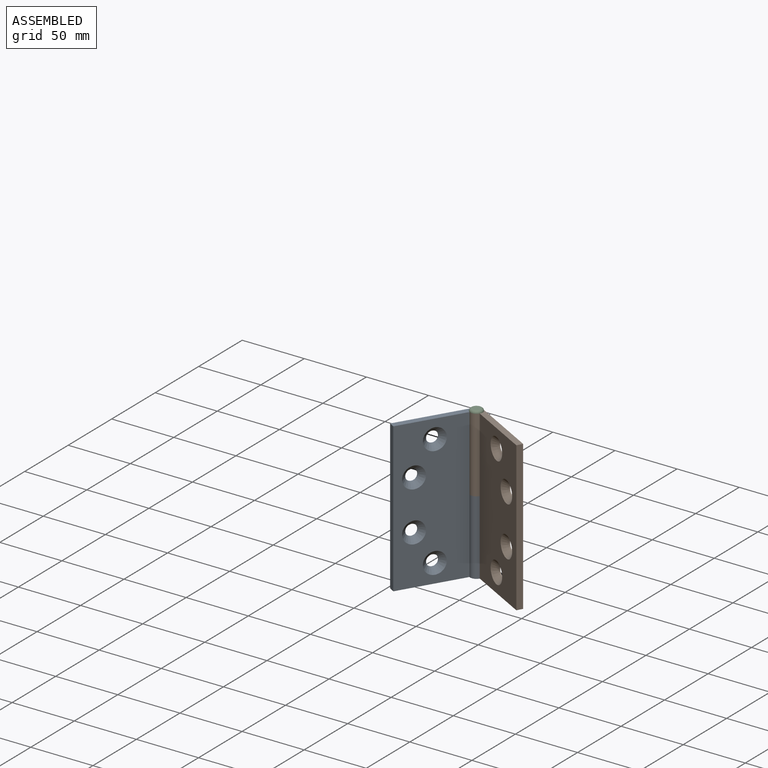
[diagram: assembled view]
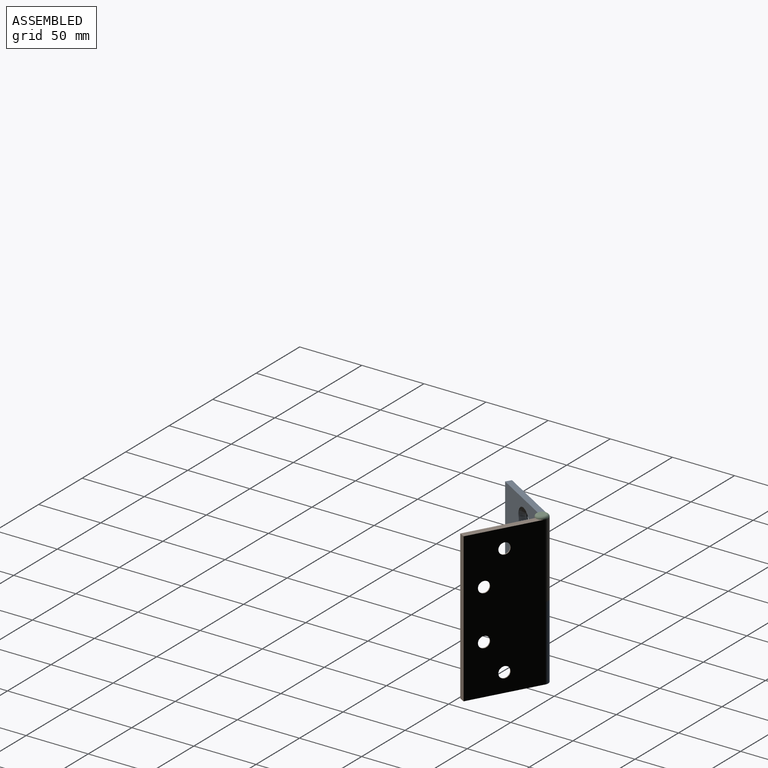
[diagram: assembled view, second angle]
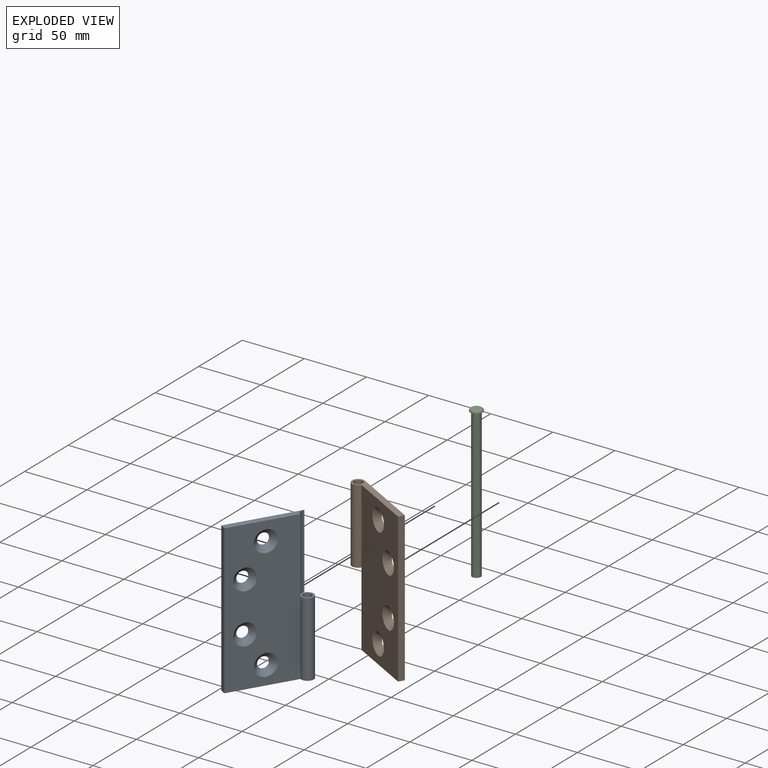
[diagram: exploded view]
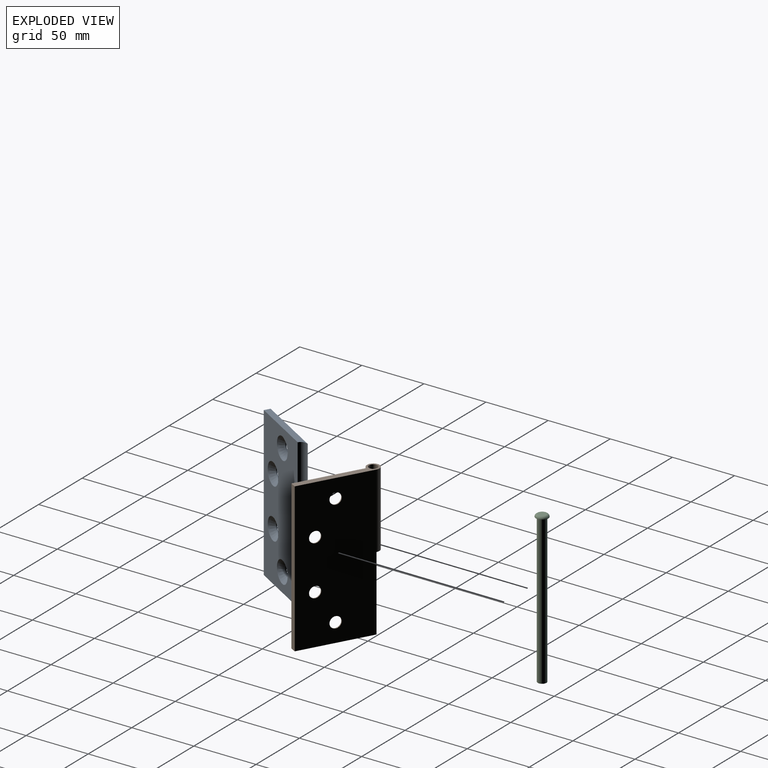
[diagram: exploded view, second angle]
ASSEMBLY  parts=3 mates=2
PART A: 17 faces, bbox 11.1x65x120 mm
  f0: cylinder r=3.52mm len=60mm, axis (0,0,1), area 1326.7mm2, adj f5,f16
  f1: plane 60.09x5.97mm, normal (0,0,1), area 280.4mm2, adj f2,f3,f4,f15
  f2: plane 120x55mm, normal (1,-0.02,0), area 5660.9mm2, adj f1,f4,f5,f6,f8,f10,f12,f14
  f3: plane 120x60mm, normal (-1,0.02,0), area 6946.7mm2, adj f1,f4,f5,f6,f7,f9,f11,f13
  f4: plane 120x5mm, normal (-0.02,-1,0), area 600mm2, adj f1,f2,f3,f5
  f5: plane 65x11.06mm, normal (0,0,-1), area 320mm2, adj f0,f2,f3,f4,f6
  f6: cylinder r=5mm len=60mm, axis (0,0,1), area 1413.7mm2, adj f2,f3,f5,f16
  f7: cylinder r=4.5mm len=9.01mm, axis (1,-0.02,0), area 24mm2, adj f3,f8
  f8: cone r=8.65mm half-angle=45deg, axis (1,-0.02,0), area 242.5mm2, adj f2,f7
  f9: cylinder r=4.5mm len=9.01mm, axis (1,-0.02,0), area 24mm2, adj f3,f10
  f10: cone r=8.65mm half-angle=45deg, axis (1,-0.02,0), area 242.5mm2, adj f2,f9
  f11: cylinder r=4.5mm len=9.01mm, axis (1,-0.02,0), area 24mm2, adj f3,f12
  f12: cone r=8.65mm half-angle=45deg, axis (1,-0.02,0), area 242.5mm2, adj f2,f11
  f13: cylinder r=4.5mm len=9.01mm, axis (1,-0.02,0), area 24mm2, adj f3,f14
  f14: cone r=8.65mm half-angle=45deg, axis (1,-0.02,0), area 242.5mm2, adj f2,f13
  f15: cylinder r=5mm len=60mm, axis (0,0,1), area 471.2mm2, adj f1,f2,f3,f16
  f16: plane 10x10mm, normal (0,0,1), area 39.6mm2, adj f0,f6,f15
PART B: same geometry as A
PART C: 5 faces, bbox 10.8x122x10.8 mm
  f0: cylinder r=3.5mm len=120mm, axis (0,1,0), area 2638.9mm2, adj f1,f2
  f1: plane 7x7mm, normal (0,-1,0), area 38.5mm2, adj f0
  f2: plane 10x10mm, normal (0,-1,0), area 40.1mm2, adj f0,f4
  f3: plane 6x6mm, normal (0,1,0), area 28.3mm2, adj f4
  f4: torus R=3mm, axis (0,-1,0), area 84.4mm2, adj f2,f3
PLACE A rot(axis=(0,0,-1),30deg) t=(-44.97,-65.47,0)mm
PLACE B rot(axis=(0.5,-0.87,0),180deg) t=(45.15,-41.32,0)mm fixed
PLACE C rot(axis=(0.94,-0.25,-0.25),93.8deg) t=(-9.77,-16.61,62)mm
MATE revolute B.f0 <-> A.f0  axis (0,0,-1) through (-9.77,-16.61,0)mm
MATE fastened C.f0 <-> A.f0  axis (0,0,1) through (-9.77,-16.61,-60)mm
